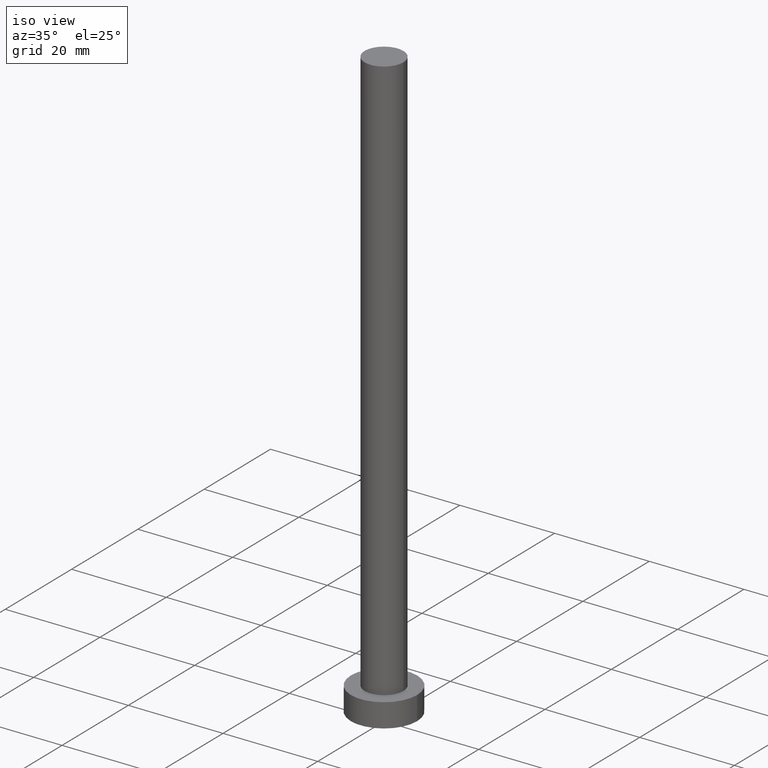
[diagram: clean part render]
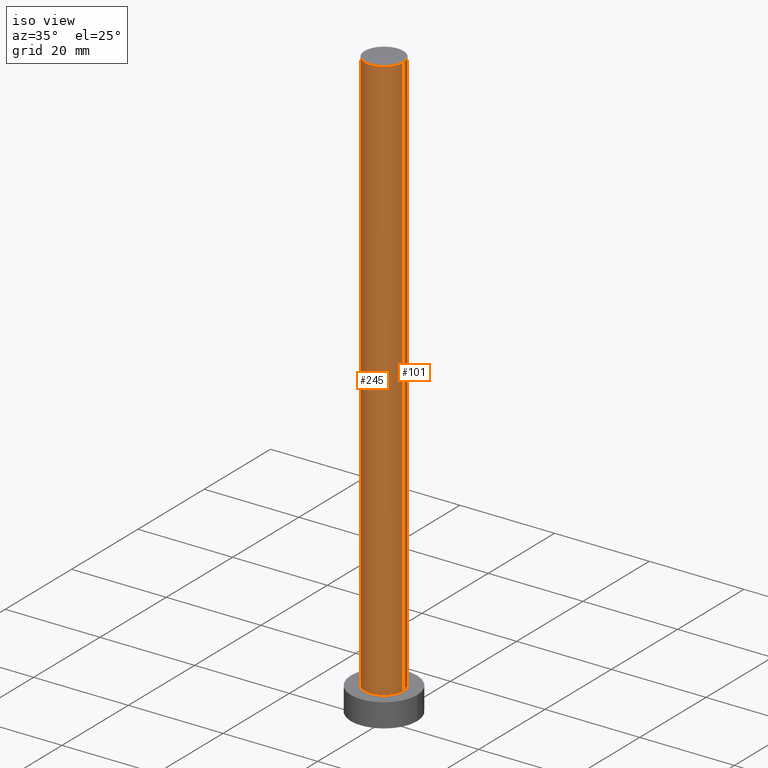
[diagram: same view with one multi-face feature highlighted, each face labeled with its STEP entity id]
A machine part, iso view. The highlighted faces form ONE feature: a constant-radius fillet chain: 2 tangent blend faces with common blend radius 4.1 mm. The faces share edges in the B-rep.
Their STEP definitions:
[1] entity #245 (Cylinder):
#2 = CARTESIAN_POINT ( 'NONE',  ( 4.099999999999999645, 5.021051876504147385E-16, 125.0000000000000000 ) ) ;
#4 = CARTESIAN_POINT ( 'NONE',  ( 0.000000000000000000, 0.000000000000000000, 125.0000000000000000 ) ) ;
#12 = CARTESIAN_POINT ( 'NONE',  ( 4.099999999999999645, 5.021051876504147385E-16, 125.0000000000000000 ) ) ;
#13 = VECTOR ( 'NONE', #143, 1000.000000000000000 ) ;
#15 = AXIS2_PLACEMENT_3D ( 'NONE', #4, #91, #161 ) ;
#20 = VERTEX_POINT ( 'NONE', #170 ) ;
#23 = LINE ( 'NONE', #12, #199 ) ;
#32 = ORIENTED_EDGE ( 'NONE', *, *, #200, .F. ) ;
#38 = DIRECTION ( 'NONE',  ( 0.000000000000000000, 0.000000000000000000, 1.000000000000000000 ) ) ;
#55 = ORIENTED_EDGE ( 'NONE', *, *, #186, .T. ) ;
#59 = DIRECTION ( 'NONE',  ( 1.000000000000000000, 0.000000000000000000, 0.000000000000000000 ) ) ;
#85 = ORIENTED_EDGE ( 'NONE', *, *, #105, .F. ) ;
#88 = CYLINDRICAL_SURFACE ( 'NONE', #15, 4.099999999999999645 ) ;
#91 = DIRECTION ( 'NONE',  ( -0.000000000000000000, -0.000000000000000000, -1.000000000000000000 ) ) ;
#92 = VERTEX_POINT ( 'NONE', #2 ) ;
#97 = CARTESIAN_POINT ( 'NONE',  ( 0.000000000000000000, 0.000000000000000000, 5.000000000000000000 ) ) ;
#105 = EDGE_CURVE ( 'NONE', #177, #92, #142, .T. ) ;
#107 = ORIENTED_EDGE ( 'NONE', *, *, #136, .T. ) ;
#109 = DIRECTION ( 'NONE',  ( 1.000000000000000000, 0.000000000000000000, 0.000000000000000000 ) ) ;
#127 = EDGE_LOOP ( 'NONE', ( #32, #85, #55, #107 ) ) ;
#136 = EDGE_CURVE ( 'NONE', #229, #20, #198, .T. ) ;
#142 = CIRCLE ( 'NONE', #149, 4.099999999999999645 ) ;
#143 = DIRECTION ( 'NONE',  ( -0.000000000000000000, -0.000000000000000000, -1.000000000000000000 ) ) ;
#149 = AXIS2_PLACEMENT_3D ( 'NONE', #238, #219, #109 ) ;
#154 = DIRECTION ( 'NONE',  ( -0.000000000000000000, -0.000000000000000000, -1.000000000000000000 ) ) ;
#161 = DIRECTION ( 'NONE',  ( -1.000000000000000000, 0.000000000000000000, 0.000000000000000000 ) ) ;
#170 = CARTESIAN_POINT ( 'NONE',  ( 4.099999999999999645, 5.021051876504147385E-16, 5.000000000000000000 ) ) ;
#177 = VERTEX_POINT ( 'NONE', #235 ) ;
#186 = EDGE_CURVE ( 'NONE', #177, #229, #196, .T. ) ;
#192 = CARTESIAN_POINT ( 'NONE',  ( -4.099999999999999645, 0.000000000000000000, 125.0000000000000000 ) ) ;
#196 = LINE ( 'NONE', #192, #13 ) ;
#198 = CIRCLE ( 'NONE', #223, 4.099999999999999645 ) ;
#199 = VECTOR ( 'NONE', #154, 1000.000000000000000 ) ;
#200 = EDGE_CURVE ( 'NONE', #92, #20, #23, .T. ) ;
#209 = FACE_OUTER_BOUND ( 'NONE', #127, .T. ) ;
#219 = DIRECTION ( 'NONE',  ( 0.000000000000000000, 0.000000000000000000, 1.000000000000000000 ) ) ;
#223 = AXIS2_PLACEMENT_3D ( 'NONE', #97, #38, #59 ) ;
#229 = VERTEX_POINT ( 'NONE', #252 ) ;
#235 = CARTESIAN_POINT ( 'NONE',  ( -4.099999999999999645, 0.000000000000000000, 125.0000000000000000 ) ) ;
#238 = CARTESIAN_POINT ( 'NONE',  ( 0.000000000000000000, 0.000000000000000000, 125.0000000000000000 ) ) ;
#245 = ADVANCED_FACE ( 'NONE', ( #209 ), #88, .T. ) ;
#252 = CARTESIAN_POINT ( 'NONE',  ( -4.099999999999999645, 0.000000000000000000, 5.000000000000000000 ) ) ;
[2] entity #101 (Cylinder):
#2 = CARTESIAN_POINT ( 'NONE',  ( 4.099999999999999645, 5.021051876504147385E-16, 125.0000000000000000 ) ) ;
#12 = CARTESIAN_POINT ( 'NONE',  ( 4.099999999999999645, 5.021051876504147385E-16, 125.0000000000000000 ) ) ;
#13 = VECTOR ( 'NONE', #143, 1000.000000000000000 ) ;
#20 = VERTEX_POINT ( 'NONE', #170 ) ;
#23 = LINE ( 'NONE', #12, #199 ) ;
#24 = CIRCLE ( 'NONE', #155, 4.099999999999999645 ) ;
#26 = DIRECTION ( 'NONE',  ( 0.000000000000000000, 0.000000000000000000, 1.000000000000000000 ) ) ;
#35 = AXIS2_PLACEMENT_3D ( 'NONE', #106, #26, #84 ) ;
#45 = DIRECTION ( 'NONE',  ( -1.000000000000000000, 0.000000000000000000, 0.000000000000000000 ) ) ;
#51 = CARTESIAN_POINT ( 'NONE',  ( 0.000000000000000000, 0.000000000000000000, 125.0000000000000000 ) ) ;
#63 = CARTESIAN_POINT ( 'NONE',  ( 0.000000000000000000, 0.000000000000000000, 125.0000000000000000 ) ) ;
#74 = CIRCLE ( 'NONE', #35, 4.099999999999999645 ) ;
#84 = DIRECTION ( 'NONE',  ( 1.000000000000000000, 0.000000000000000000, 0.000000000000000000 ) ) ;
#92 = VERTEX_POINT ( 'NONE', #2 ) ;
#98 = EDGE_LOOP ( 'NONE', ( #131, #237, #173, #191 ) ) ;
#101 = ADVANCED_FACE ( 'NONE', ( #243 ), #152, .T. ) ;
#106 = CARTESIAN_POINT ( 'NONE',  ( 0.000000000000000000, 0.000000000000000000, 5.000000000000000000 ) ) ;
#131 = ORIENTED_EDGE ( 'NONE', *, *, #230, .F. ) ;
#143 = DIRECTION ( 'NONE',  ( -0.000000000000000000, -0.000000000000000000, -1.000000000000000000 ) ) ;
#145 = DIRECTION ( 'NONE',  ( 0.000000000000000000, 0.000000000000000000, 1.000000000000000000 ) ) ;
#152 = CYLINDRICAL_SURFACE ( 'NONE', #188, 4.099999999999999645 ) ;
#154 = DIRECTION ( 'NONE',  ( -0.000000000000000000, -0.000000000000000000, -1.000000000000000000 ) ) ;
#155 = AXIS2_PLACEMENT_3D ( 'NONE', #63, #145, #216 ) ;
#170 = CARTESIAN_POINT ( 'NONE',  ( 4.099999999999999645, 5.021051876504147385E-16, 5.000000000000000000 ) ) ;
#173 = ORIENTED_EDGE ( 'NONE', *, *, #233, .T. ) ;
#175 = DIRECTION ( 'NONE',  ( -0.000000000000000000, -0.000000000000000000, -1.000000000000000000 ) ) ;
#177 = VERTEX_POINT ( 'NONE', #235 ) ;
#186 = EDGE_CURVE ( 'NONE', #177, #229, #196, .T. ) ;
#188 = AXIS2_PLACEMENT_3D ( 'NONE', #51, #175, #45 ) ;
#191 = ORIENTED_EDGE ( 'NONE', *, *, #186, .F. ) ;
#192 = CARTESIAN_POINT ( 'NONE',  ( -4.099999999999999645, 0.000000000000000000, 125.0000000000000000 ) ) ;
#196 = LINE ( 'NONE', #192, #13 ) ;
#199 = VECTOR ( 'NONE', #154, 1000.000000000000000 ) ;
#200 = EDGE_CURVE ( 'NONE', #92, #20, #23, .T. ) ;
#216 = DIRECTION ( 'NONE',  ( 1.000000000000000000, 0.000000000000000000, 0.000000000000000000 ) ) ;
#229 = VERTEX_POINT ( 'NONE', #252 ) ;
#230 = EDGE_CURVE ( 'NONE', #92, #177, #24, .T. ) ;
#233 = EDGE_CURVE ( 'NONE', #20, #229, #74, .T. ) ;
#235 = CARTESIAN_POINT ( 'NONE',  ( -4.099999999999999645, 0.000000000000000000, 125.0000000000000000 ) ) ;
#237 = ORIENTED_EDGE ( 'NONE', *, *, #200, .T. ) ;
#243 = FACE_OUTER_BOUND ( 'NONE', #98, .T. ) ;
#252 = CARTESIAN_POINT ( 'NONE',  ( -4.099999999999999645, 0.000000000000000000, 5.000000000000000000 ) ) ;